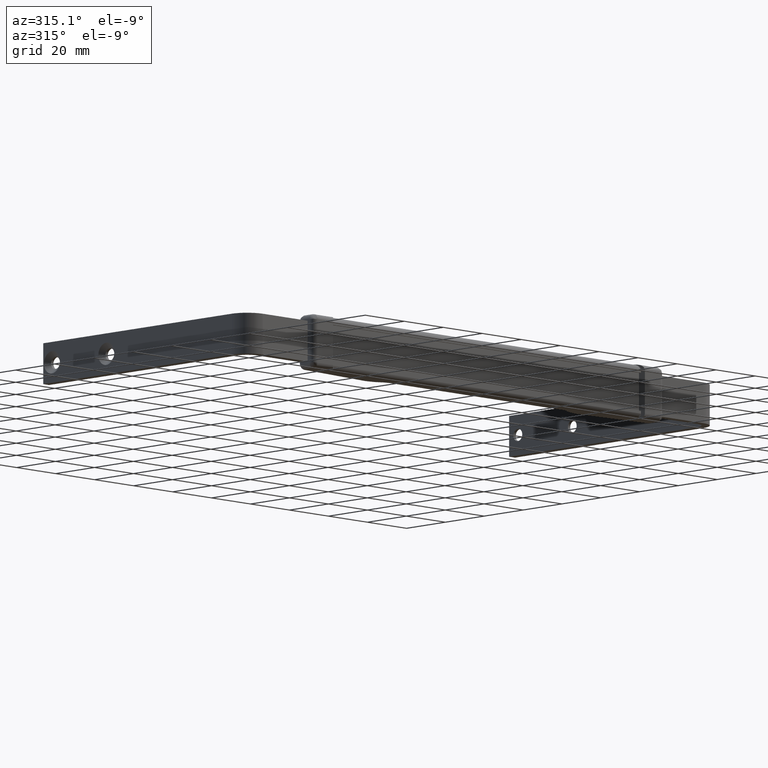
[diagram: clean part render]
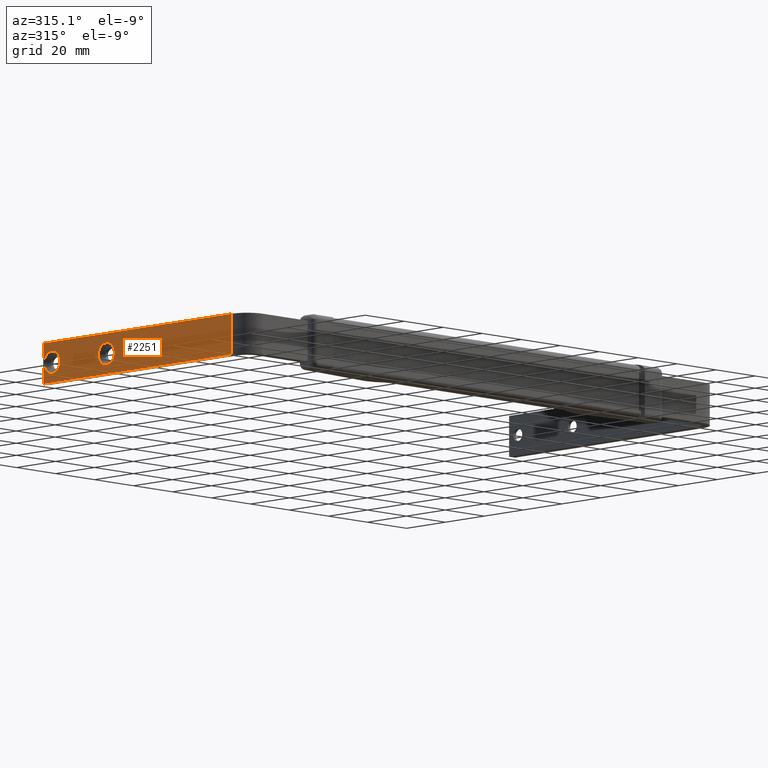
[diagram: same view with one face highlighted and labeled with its STEP entity id]
A machine part, auxiliary view. The second image highlights one B-rep face of the part: STEP entity #2251.
In plain terms, the highlighted face is a freeform B-spline surface patch.
Its self-contained STEP definition (entity closure, byte-faithful):
#443=CARTESIAN_POINT('',(-121.000000000003400,4.073223693088620,-100.967812725446290));
#444=VERTEX_POINT('',#443);
#450=CARTESIAN_POINT('',(-121.0,0.0,-104.599999999999990));
#451=VERTEX_POINT('',#450);
#452=CARTESIAN_POINT('',(-121.000000000003470,4.073223693088621,-100.967812725446340));
#453=CARTESIAN_POINT('',(-121.0,3.656064323428622,-104.600000000000010));
#454=CARTESIAN_POINT('',(-121.0,0.0,-104.599999999999990));
#462=(BOUNDED_CURVE()B_SPLINE_CURVE(2,(#452,#453,#454),.UNSPECIFIED.,.F.,.U.)B_SPLINE_CURVE_WITH_KNOTS((3,3),(0.269767755877479,0.500000000000000),.UNSPECIFIED.)CURVE()GEOMETRIC_REPRESENTATION_ITEM()RATIONAL_B_SPLINE_CURVE((0.957343736458947,0.730266147777242,1.0))REPRESENTATION_ITEM(''));
#463=EDGE_CURVE('',#444,#451,#462,.T.);
#465=CARTESIAN_POINT('',(-121.000000746710000,-4.092353199471168,-100.750302644388300));
#466=VERTEX_POINT('',#465);
#467=CARTESIAN_POINT('',(-121.0,0.0,-104.599999999999990));
#468=CARTESIAN_POINT('',(-121.000000373355010,-3.856891860311458,-104.600000022793100));
#469=CARTESIAN_POINT('',(-121.000000746710030,-4.092353199471168,-100.750302644388310));
#477=(BOUNDED_CURVE()B_SPLINE_CURVE(2,(#467,#468,#469),.UNSPECIFIED.,.F.,.U.)B_SPLINE_CURVE_WITH_KNOTS((3,3),(0.500000000000000,0.739332811014756),.UNSPECIFIED.)CURVE()GEOMETRIC_REPRESENTATION_ITEM()RATIONAL_B_SPLINE_CURVE((1.0,0.719604170456866,0.976071717564713))REPRESENTATION_ITEM(''));
#478=EDGE_CURVE('',#451,#466,#477,.T.);
#573=CARTESIAN_POINT('',(-121.0,0.0,-96.400000000000006));
#574=VERTEX_POINT('',#573);
#575=CARTESIAN_POINT('',(-121.000000746710040,-4.092353199471168,-100.750302644388310));
#576=CARTESIAN_POINT('',(-121.000000735979260,-4.100000734604863,-100.625268172838350));
#577=CARTESIAN_POINT('',(-121.000000724572000,-4.100000723218973,-100.500000044234600));
#578=CARTESIAN_POINT('',(-121.000000351217010,-4.100000350561158,-96.400000021441571));
#579=CARTESIAN_POINT('',(-121.0,0.0,-96.400000000000006));
#587=(BOUNDED_CURVE()B_SPLINE_CURVE(2,(#575,#576,#577,#578,#579),.UNSPECIFIED.,.F.,.U.)B_SPLINE_CURVE_WITH_KNOTS((3,2,3),(0.739332811014756,0.750000000000000,1.0),.UNSPECIFIED.)CURVE()GEOMETRIC_REPRESENTATION_ITEM()RATIONAL_B_SPLINE_CURVE((0.976071717564714,0.987502610729682,1.0,0.707106781186547,1.0))REPRESENTATION_ITEM(''));
#588=EDGE_CURVE('',#466,#574,#587,.T.);
#590=CARTESIAN_POINT('',(-121.0,0.0,-96.400000000000006));
#591=CARTESIAN_POINT('',(-121.0,4.100000000000001,-96.400000000000006));
#592=CARTESIAN_POINT('',(-121.0,4.100000000000001,-100.500000000000000));
#593=CARTESIAN_POINT('',(-120.999999999999990,4.100000000000000,-100.734672663614280));
#594=CARTESIAN_POINT('',(-121.000000000003470,4.073223693088621,-100.967812725446340));
#602=(BOUNDED_CURVE()B_SPLINE_CURVE(2,(#590,#591,#592,#593,#594),.UNSPECIFIED.,.F.,.U.)B_SPLINE_CURVE_WITH_KNOTS((3,2,3),(0.0,0.250000000000000,0.269767755877479),.UNSPECIFIED.)CURVE()GEOMETRIC_REPRESENTATION_ITEM()RATIONAL_B_SPLINE_CURVE((1.0,0.707106781186547,1.0,0.976840633409306,0.957343736458947))REPRESENTATION_ITEM(''));
#603=EDGE_CURVE('',#574,#444,#602,.T.);
#771=CARTESIAN_POINT('',(-121.000000000003400,4.073223693088620,-72.967812725446350));
#772=VERTEX_POINT('',#771);
#778=CARTESIAN_POINT('',(-121.0,0.0,-76.599999999999994));
#779=VERTEX_POINT('',#778);
#780=CARTESIAN_POINT('',(-121.000000000003420,4.073223693088620,-72.967812725446350));
#781=CARTESIAN_POINT('',(-121.000000000000010,3.656064323428607,-76.599999999999994));
#782=CARTESIAN_POINT('',(-121.0,0.0,-76.599999999999994));
#790=(BOUNDED_CURVE()B_SPLINE_CURVE(2,(#780,#781,#782),.UNSPECIFIED.,.F.,.U.)B_SPLINE_CURVE_WITH_KNOTS((3,3),(0.269767755877480,0.500000000000000),.UNSPECIFIED.)CURVE()GEOMETRIC_REPRESENTATION_ITEM()RATIONAL_B_SPLINE_CURVE((0.957343736458946,0.730266147777242,1.0))REPRESENTATION_ITEM(''));
#791=EDGE_CURVE('',#772,#779,#790,.T.);
#793=CARTESIAN_POINT('',(-121.000000746710000,-4.092353199471168,-72.750302644388313));
#794=VERTEX_POINT('',#793);
#795=CARTESIAN_POINT('',(-121.0,0.0,-76.599999999999994));
#796=CARTESIAN_POINT('',(-121.000000373355010,-3.856891860311458,-76.600000022793068));
#797=CARTESIAN_POINT('',(-121.000000746710030,-4.092353199471168,-72.750302644388313));
#805=(BOUNDED_CURVE()B_SPLINE_CURVE(2,(#795,#796,#797),.UNSPECIFIED.,.F.,.U.)B_SPLINE_CURVE_WITH_KNOTS((3,3),(0.500000000000000,0.739332811014756),.UNSPECIFIED.)CURVE()GEOMETRIC_REPRESENTATION_ITEM()RATIONAL_B_SPLINE_CURVE((1.0,0.719604170456866,0.976071717564713))REPRESENTATION_ITEM(''));
#806=EDGE_CURVE('',#779,#794,#805,.T.);
#901=CARTESIAN_POINT('',(-121.0,0.0,-68.399999999999991));
#902=VERTEX_POINT('',#901);
#903=CARTESIAN_POINT('',(-121.000000746710040,-4.092353199471168,-72.750302644388313));
#904=CARTESIAN_POINT('',(-121.000000735979210,-4.100000734604863,-72.625268172838332));
#905=CARTESIAN_POINT('',(-121.000000724572000,-4.100000723218973,-72.500000044234625));
#906=CARTESIAN_POINT('',(-121.000000351217010,-4.100000350561158,-68.400000021441542));
#907=CARTESIAN_POINT('',(-121.0,0.0,-68.399999999999991));
#915=(BOUNDED_CURVE()B_SPLINE_CURVE(2,(#903,#904,#905,#906,#907),.UNSPECIFIED.,.F.,.U.)B_SPLINE_CURVE_WITH_KNOTS((3,2,3),(0.739332811014756,0.750000000000000,1.0),.UNSPECIFIED.)CURVE()GEOMETRIC_REPRESENTATION_ITEM()RATIONAL_B_SPLINE_CURVE((0.976071717564713,0.987502610729682,1.0,0.707106781186547,1.0))REPRESENTATION_ITEM(''));
#916=EDGE_CURVE('',#794,#902,#915,.T.);
#918=CARTESIAN_POINT('',(-121.0,0.0,-68.399999999999991));
#919=CARTESIAN_POINT('',(-121.0,4.100000000000001,-68.399999999999991));
#920=CARTESIAN_POINT('',(-121.0,4.100000000000001,-72.500000000000000));
#921=CARTESIAN_POINT('',(-120.999999999999990,4.100000000000001,-72.734672663614290));
#922=CARTESIAN_POINT('',(-121.000000000003420,4.073223693088620,-72.967812725446350));
#930=(BOUNDED_CURVE()B_SPLINE_CURVE(2,(#918,#919,#920,#921,#922),.UNSPECIFIED.,.F.,.U.)B_SPLINE_CURVE_WITH_KNOTS((3,2,3),(0.0,0.250000000000000,0.269767755877480),.UNSPECIFIED.)CURVE()GEOMETRIC_REPRESENTATION_ITEM()RATIONAL_B_SPLINE_CURVE((1.0,0.707106781186547,1.0,0.976840633409305,0.957343736458946))REPRESENTATION_ITEM(''));
#931=EDGE_CURVE('',#902,#772,#930,.T.);
#1757=CARTESIAN_POINT('',(-121.0,-7.500000000000000,-105.0));
#1758=VERTEX_POINT('',#1757);
#1759=CARTESIAN_POINT('',(-121.0,-7.500000000000000,-8.0));
#1760=VERTEX_POINT('',#1759);
#1761=CARTESIAN_POINT('',(-121.0,-7.500000000000000,-105.0));
#1762=CARTESIAN_POINT('',(-121.0,-7.500000000000000,-8.0));
#1763=QUASI_UNIFORM_CURVE('',1,(#1761,#1762),.UNSPECIFIED.,.F.,.U.);
#1764=EDGE_CURVE('',#1758,#1760,#1763,.T.);
#1881=CARTESIAN_POINT('',(-121.0,7.499999999999840,-105.0));
#1882=VERTEX_POINT('',#1881);
#1883=CARTESIAN_POINT('',(-121.0,7.499999999999840,-8.0));
#1884=VERTEX_POINT('',#1883);
#1885=CARTESIAN_POINT('',(-121.0,7.499999999999840,-105.0));
#1886=CARTESIAN_POINT('',(-121.0,7.499999999999840,-8.0));
#1887=QUASI_UNIFORM_CURVE('',1,(#1885,#1886),.UNSPECIFIED.,.F.,.U.);
#1888=EDGE_CURVE('',#1882,#1884,#1887,.T.);
#2006=CARTESIAN_POINT('',(-121.0,7.499999999999840,-105.0));
#2007=CARTESIAN_POINT('',(-121.0,-7.500000000000000,-105.0));
#2008=QUASI_UNIFORM_CURVE('',1,(#2006,#2007),.UNSPECIFIED.,.F.,.U.);
#2009=EDGE_CURVE('',#1882,#1758,#2008,.T.);
#2220=CARTESIAN_POINT('',(-121.0,7.499999999999840,-8.0));
#2221=CARTESIAN_POINT('',(-121.0,-7.500000000000000,-8.0));
#2222=QUASI_UNIFORM_CURVE('',1,(#2220,#2221),.UNSPECIFIED.,.F.,.U.);
#2223=EDGE_CURVE('',#1884,#1760,#2222,.T.);
#2228=CARTESIAN_POINT('',(-121.0,-8.249249970927082,-3.154850188004831));
#2229=CARTESIAN_POINT('',(-121.0,-8.249249970927082,-109.845152413737910));
#2230=CARTESIAN_POINT('',(-121.0,8.249250373258274,-3.154850188004831));
#2231=CARTESIAN_POINT('',(-121.0,8.249250373258274,-109.845152413737910));
#2232=B_SPLINE_SURFACE_WITH_KNOTS('',1,1,((#2228,#2230),(#2229,#2231)),.UNSPECIFIED.,.F.,.F.,.U.,(2,2),(2,2),(0.0,106.690302225733110),(0.0,16.498500344185359),.UNSPECIFIED.);
#2233=ORIENTED_EDGE('',*,*,#1764,.T.);
#2234=ORIENTED_EDGE('',*,*,#2223,.F.);
#2235=ORIENTED_EDGE('',*,*,#1888,.F.);
#2236=ORIENTED_EDGE('',*,*,#2009,.T.);
#2237=EDGE_LOOP('',(#2233,#2234,#2235,#2236));
#2238=FACE_OUTER_BOUND('',#2237,.T.);
#2239=ORIENTED_EDGE('',*,*,#806,.F.);
#2240=ORIENTED_EDGE('',*,*,#791,.F.);
#2241=ORIENTED_EDGE('',*,*,#931,.F.);
#2242=ORIENTED_EDGE('',*,*,#916,.F.);
#2243=EDGE_LOOP('',(#2239,#2240,#2241,#2242));
#2244=FACE_BOUND('',#2243,.T.);
#2245=ORIENTED_EDGE('',*,*,#478,.F.);
#2246=ORIENTED_EDGE('',*,*,#463,.F.);
#2247=ORIENTED_EDGE('',*,*,#603,.F.);
#2248=ORIENTED_EDGE('',*,*,#588,.F.);
#2249=EDGE_LOOP('',(#2245,#2246,#2247,#2248));
#2250=FACE_BOUND('',#2249,.T.);
#2251=ADVANCED_FACE('',(#2238,#2244,#2250),#2232,.F.);